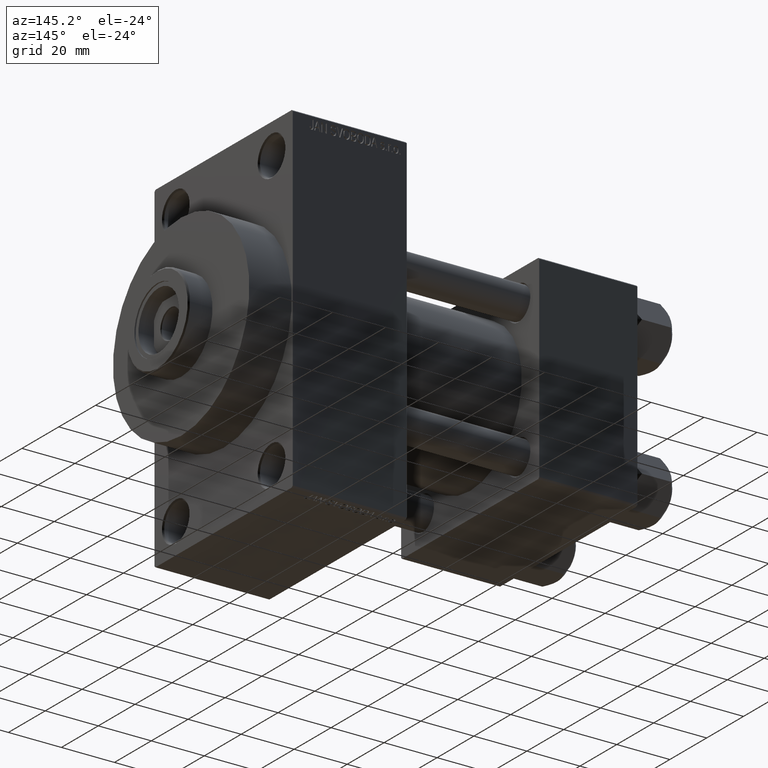
[diagram: clean part render]
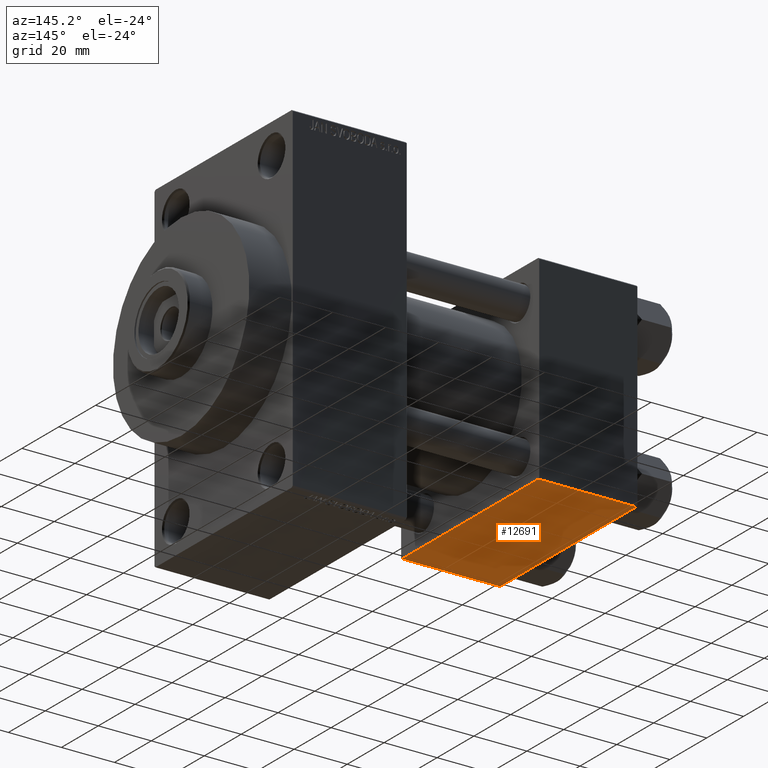
[diagram: same view with one face highlighted and labeled with its STEP entity id]
A machine part, auxiliary view. The second image highlights one B-rep face of the part: STEP entity #12691.
In plain terms, the highlighted planar face has unit normal (0, 0, -1).
Its self-contained STEP definition (entity closure, byte-faithful):
#1213 = DIRECTION ( 'NONE',  ( 0.000000000000000000, -1.000000000000000000, -9.251858538542972814E-17 ) ) ;
#1819 = VECTOR ( 'NONE', #27259, 1000.000000000000000 ) ;
#2298 = VECTOR ( 'NONE', #1213, 1000.000000000000000 ) ;
#2861 = CARTESIAN_POINT ( 'NONE',  ( 37.00000000000000000, 36.99999999999997868, -37.50000000000000000 ) ) ;
#6436 = LINE ( 'NONE', #14069, #37863 ) ;
#6547 = EDGE_CURVE ( 'NONE', #38357, #17308, #41790, .T. ) ;
#9092 = CARTESIAN_POINT ( 'NONE',  ( 0.000000000000000000, 37.49999999999999289, -37.50000000000000000 ) ) ;
#10487 = VERTEX_POINT ( 'NONE', #2861 ) ;
#12433 = DIRECTION ( 'NONE',  ( -1.000000000000000000, 0.000000000000000000, 0.000000000000000000 ) ) ;
#12691 = ADVANCED_FACE ( 'NONE', ( #25455 ), #36435, .T. ) ;
#12897 = CARTESIAN_POINT ( 'NONE',  ( 0.000000000000000000, -37.00000000000002132, -37.50000000000000711 ) ) ;
#14069 = CARTESIAN_POINT ( 'NONE',  ( 37.00000000000000000, 36.99999999999997868, -37.50000000000000000 ) ) ;
#14299 = DIRECTION ( 'NONE',  ( 1.000000000000000000, 0.000000000000000000, 0.000000000000000000 ) ) ;
#14824 = CARTESIAN_POINT ( 'NONE',  ( 0.000000000000000000, 36.99999999999997868, -37.50000000000000000 ) ) ;
#14845 = VECTOR ( 'NONE', #12433, 1000.000000000000000 ) ;
#14984 = EDGE_CURVE ( 'NONE', #38357, #10487, #6436, .T. ) ;
#17308 = VERTEX_POINT ( 'NONE', #28548 ) ;
#19592 = LINE ( 'NONE', #12897, #14845 ) ;
#21672 = ORIENTED_EDGE ( 'NONE', *, *, #14984, .T. ) ;
#23444 = CARTESIAN_POINT ( 'NONE',  ( 37.00000000000000000, 37.49999999999999289, -37.50000000000000000 ) ) ;
#23687 = CARTESIAN_POINT ( 'NONE',  ( 37.00000000000000000, 37.49999999999999289, -37.50000000000000000 ) ) ;
#24162 = LINE ( 'NONE', #23687, #1819 ) ;
#25455 = FACE_OUTER_BOUND ( 'NONE', #44402, .T. ) ;
#27259 = DIRECTION ( 'NONE',  ( 0.000000000000000000, -1.000000000000000000, -9.251858538542972814E-17 ) ) ;
#28548 = CARTESIAN_POINT ( 'NONE',  ( 0.000000000000000000, -37.00000000000002132, -37.50000000000000711 ) ) ;
#32854 = DIRECTION ( 'NONE',  ( 0.000000000000000000, 1.000000000000000000, 9.251858538542972814E-17 ) ) ;
#34380 = ORIENTED_EDGE ( 'NONE', *, *, #6547, .F. ) ;
#34438 = DIRECTION ( 'NONE',  ( 0.000000000000000000, 9.251858538542972814E-17, -1.000000000000000000 ) ) ;
#35553 = ORIENTED_EDGE ( 'NONE', *, *, #35558, .T. ) ;
#35558 = EDGE_CURVE ( 'NONE', #10487, #45085, #24162, .T. ) ;
#36435 = PLANE ( 'NONE',  #43501 ) ;
#37863 = VECTOR ( 'NONE', #14299, 1000.000000000000000 ) ;
#38357 = VERTEX_POINT ( 'NONE', #14824 ) ;
#40526 = CARTESIAN_POINT ( 'NONE',  ( 37.00000000000000000, -37.00000000000002132, -37.50000000000000711 ) ) ;
#41790 = LINE ( 'NONE', #9092, #2298 ) ;
#42933 = ORIENTED_EDGE ( 'NONE', *, *, #46443, .T. ) ;
#43501 = AXIS2_PLACEMENT_3D ( 'NONE', #23444, #34438, #32854 ) ;
#44402 = EDGE_LOOP ( 'NONE', ( #34380, #21672, #35553, #42933 ) ) ;
#45085 = VERTEX_POINT ( 'NONE', #40526 ) ;
#46443 = EDGE_CURVE ( 'NONE', #45085, #17308, #19592, .T. ) ;